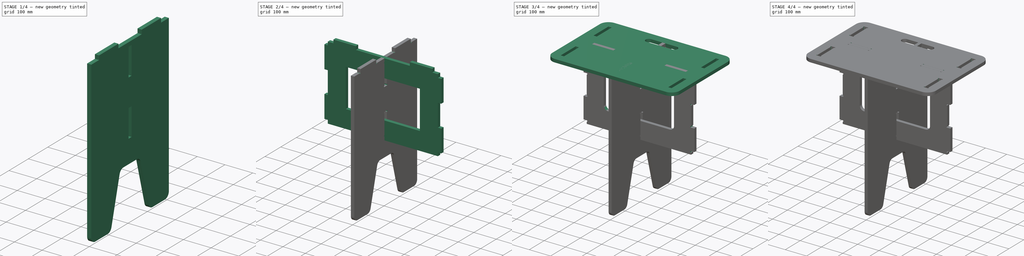
[diagram: build sequence overview — one tinted view per stage of 4, left to right]
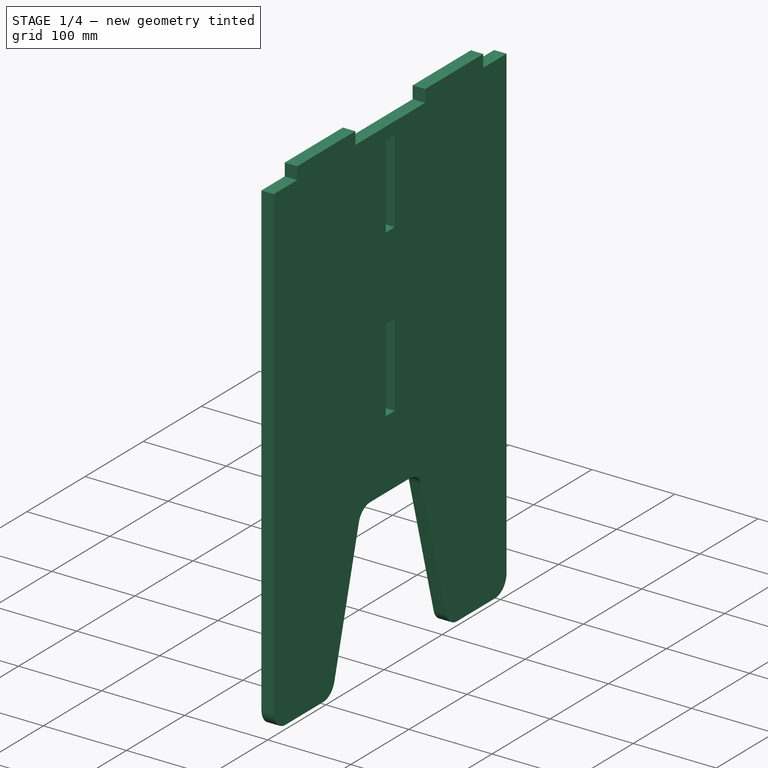
[diagram: stage 1 of 4 — iso view after this stage's code; geometry added in this stage tinted green]
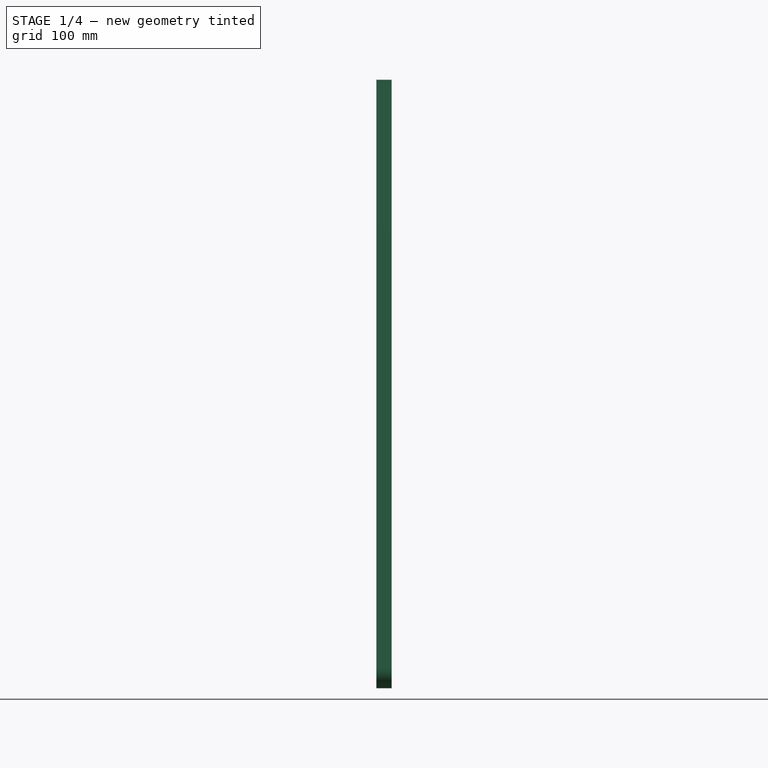
[diagram: stage 1 of 4 — front view after this stage's code; geometry added in this stage tinted green]
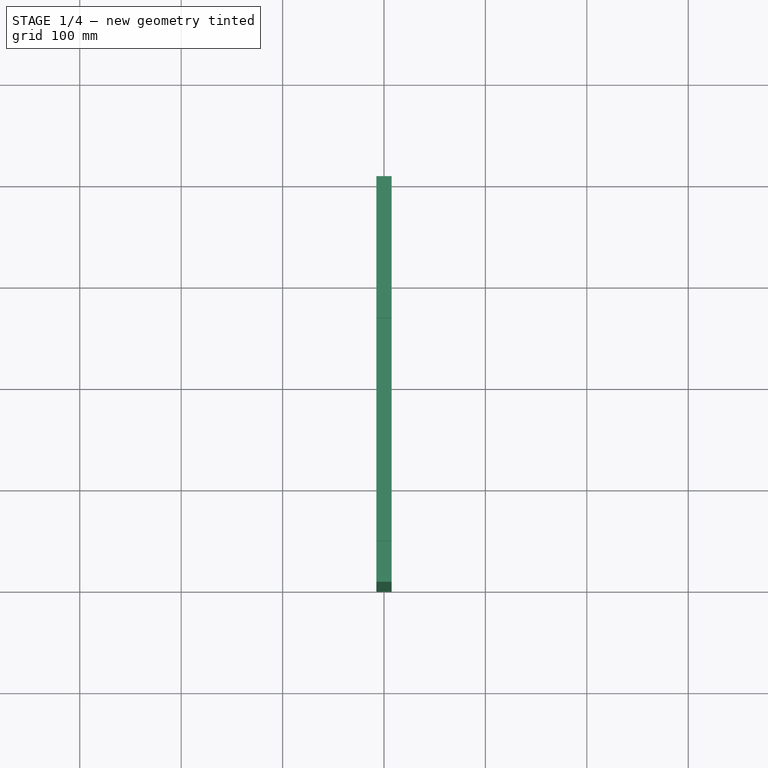
[diagram: stage 1 of 4 — top view after this stage's code; geometry added in this stage tinted green]
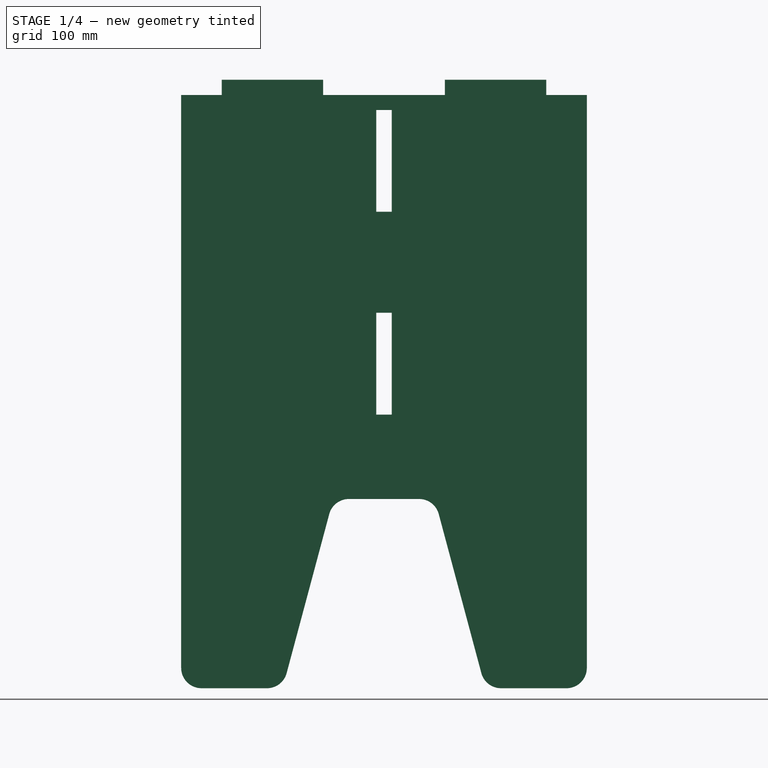
[diagram: stage 1 of 4 — right view after this stage's code; geometry added in this stage tinted green]
FCSTD DOCUMENT  (FreeCAD 0.19R22522 (Git))
Label: a-stool-fab
License: All rights reserved
LicenseURL: http://en.wikipedia.org/wiki/All_rights_reserved
objects: Sketcher::SketchObject×6, PartDesign::Body×4, PartDesign::Pad×3, PartDesign::Pocket×3, TechDraw::DrawViewPart×3, PartDesign::Fillet×2, Spreadsheet::Sheet×1, PartDesign::FeatureBase×1, App::DocumentObjectGroup×1, TechDraw::DrawSVGTemplate×1, TechDraw::DrawPage×1
note: 27 computed .brp shape members not serialized (recipe doc carries the construction recipe); baked Part::Feature solids carry a one-line shape summary decoded from their .brp

FEATURE [Sketcher::SketchObject] Sketch001
  MapMode = 5
  Placement = pos=(0,0,0) rot=(0.57735,0.57735,0.57735;2.0944rad)
  Support = -> [YZ_Plane001]
  expr: Constraints[65] = Spreadsheet.slot_f_length
  expr: Constraints[40] = Spreadsheet.seat_margin
  expr: Constraints[70] = Spreadsheet.slot_length - Spreadsheet.tolerance * 2
  expr: Constraints[14] = Spreadsheet.angle
  expr: Constraints[17] = Spreadsheet.seat_y
  expr: Constraints[38] = Spreadsheet.slot_length
  expr: Constraints[63] = Spreadsheet.slot_f_width
  expr: Constraints[15] = Spreadsheet.angle
  expr: Constraints[67] = Spreadsheet.material_thickness - Spreadsheet.tolerance
  expr: Constraints[34] = Spreadsheet.material_thickness
  expr: Constraints[43] = Spreadsheet.feet_height
  sketch-geometry (25):
    g0: LineSegment StartX=-200 StartY=-600 StartZ=0 EndX=-200 EndY=-15 EndZ=0
    g1: LineSegment StartX=-200 StartY=-15 StartZ=0 EndX=-160 EndY=-15 EndZ=0
    g2: LineSegment StartX=160 StartY=-15 StartZ=0 EndX=200 EndY=-15 EndZ=0
    g3: LineSegment StartX=200 StartY=-15 StartZ=0 EndX=200 EndY=-600 EndZ=0
    g4: LineSegment StartX=200 StartY=-600 StartZ=0 EndX=100 EndY=-600 EndZ=0
    g5: LineSegment StartX=100 StartY=-600 StartZ=0 EndX=50 EndY=-413.397 EndZ=0
    g6: LineSegment StartX=50 StartY=-413.397 StartZ=0 EndX=-50 EndY=-413.397 EndZ=0
    g7: LineSegment StartX=-50 StartY=-413.397 StartZ=0 EndX=-100 EndY=-600 EndZ=0
    g8: LineSegment StartX=-100 StartY=-600 StartZ=0 EndX=-200 EndY=-600 EndZ=0
    g9: LineSegment StartX=-160 StartY=-15 StartZ=0 EndX=-160 EndY=0 EndZ=0
    g10: LineSegment StartX=-160 StartY=0 StartZ=0 EndX=-60 EndY=0 EndZ=0
    g11: LineSegment StartX=-60 StartY=0 StartZ=0 EndX=-60 EndY=-15 EndZ=0
    g12: LineSegment StartX=-60 StartY=-15 StartZ=0 EndX=60 EndY=-15 EndZ=0
    g13: LineSegment StartX=60 StartY=-15 StartZ=0 EndX=60 EndY=0 EndZ=0
    g14: LineSegment StartX=60 StartY=0 StartZ=0 EndX=160 EndY=0 EndZ=0
    g15: LineSegment StartX=160 StartY=0 StartZ=0 EndX=160 EndY=-15 EndZ=0
    g16: LineSegment [constr] StartX=-100 StartY=-600 StartZ=0 EndX=100 EndY=-600 EndZ=0
    g17: LineSegment StartX=-7.7 StartY=-29.8 StartZ=0 EndX=7.7 EndY=-29.8 EndZ=0
    g18: LineSegment StartX=7.7 StartY=-29.8 StartZ=0 EndX=7.7 EndY=-130.2 EndZ=0
    g19: LineSegment StartX=7.7 StartY=-130.2 StartZ=0 EndX=-7.7 EndY=-130.2 EndZ=0
    g20: LineSegment StartX=-7.7 StartY=-130.2 StartZ=0 EndX=-7.7 EndY=-29.8 EndZ=0
    g21: LineSegment StartX=-7.7 StartY=-229.8 StartZ=0 EndX=7.7 EndY=-229.8 EndZ=0
    g22: LineSegment StartX=7.7 StartY=-229.8 StartZ=0 EndX=7.7 EndY=-330.2 EndZ=0
    g23: LineSegment StartX=7.7 StartY=-330.2 StartZ=0 EndX=-7.7 EndY=-330.2 EndZ=0
    g24: LineSegment StartX=-7.7 StartY=-330.2 StartZ=0 EndX=-7.7 EndY=-229.8 EndZ=0
  constraints (71):
    c: Coincident(g0,g1)
    c: Horizontal(g1)
    c: Coincident(g2,g3)
    c: Coincident(g3,g4)
    c: Horizontal(g4)
    c: Coincident(g4,g5)
    c: Coincident(g5,g6)
    c: Coincident(g6,g7)
    c: Coincident(g7,g8)
    c: Coincident(g0,g8)
    c: Horizontal(g8)
    c: Horizontal(g2)
    c: Vertical(g0)
    c: Vertical(g3)
    c: Angle(g7,g6) = 1.8326
    c: Angle(g6,g5) = 1.8326
    c: Symmetric(g6,g5,g-2)
    c: DistanceX(g0,g3) = 400
    c: Equal(g3,g0)
    c: Coincident(g9,g1)
    c: Vertical(g9)
    c: Coincident(g9,g10)
    c: Horizontal(g10)
    c: Coincident(g10,g11)
    c: Vertical(g11)
    c: Coincident(g11,g12)
    c: Horizontal(g12)
    c: Coincident(g12,g13)
    c: Vertical(g13)
    c: Coincident(g13,g14)
    c: Horizontal(g14)
    c: Coincident(g14,g15)
    c: Coincident(g15,g2)
    c: Vertical(g15)
    c: DistanceY(g9,g9) = 15
    c: PointOnObject(g9,g-1)
    c: Equal(g13,g9)
    c: PointOnObject(g13,g-1)
    c: DistanceX(g10,g10) = 100
    c: Equal(g14,g10)
    c: DistanceX(g1,g1) = 40
    c: Equal(g2,g1)
    c: Equal(g9,g15)
    c: DistanceY(g3,g14) = 600
    c: Equal(g10,g8)
    c: Equal(g8,g4)
    c: Equal(g8,g6)
    c: Coincident(g16,g7)
    c: Coincident(g16,g4)
    c: Coincident(g17,g18)
    c: Coincident(g18,g19)
    c: Coincident(g19,g20)
    c: Coincident(g20,g17)
    c: Horizontal(g19)
    c: Vertical(g18)
    c: Vertical(g20)
    c: Coincident(g21,g22)
    c: Coincident(g22,g23)
    c: Coincident(g23,g24)
    c: Coincident(g24,g21)
    c: Horizontal(g23)
    c: Vertical(g22)
    c: Vertical(g24)
    c: DistanceX(g17,g17) = 15.4
    c: Equal(g17,g21)
    c: DistanceY(g18,g18) = 100.4
    c: Equal(g20,g24)
    c: DistanceY(g17,g11) = 14.8
    c: Symmetric(g17,g17,g-2)
    c: Symmetric(g21,g21,g-2)
    c: DistanceY(g21,g19) = 99.6
FEATURE [PartDesign::Pad] Pad001
  Direction = (1,1,1)
  Length = 15
  Length2 = 100
  Midplane = true
  Placement = pos=(0,0,0) rot=(0.57735,0.57735,0.57735;2.0944rad)
  Profile = -> Sketch001
  Type = 0
  expr: Length = Spreadsheet.material_thickness
FEATURE [PartDesign::Fillet] Fillet
  Base = -> Pad001 [Edge35,Edge32,Edge38,Edge41,Edge44,Edge1]
  BaseFeature = -> Pad001
  Placement = pos=(0,0,0) rot=(0.57735,0.57735,0.57735;2.0944rad)
  Radius = 20
  SupportTransform = false
  expr: Radius = Spreadsheet.filet
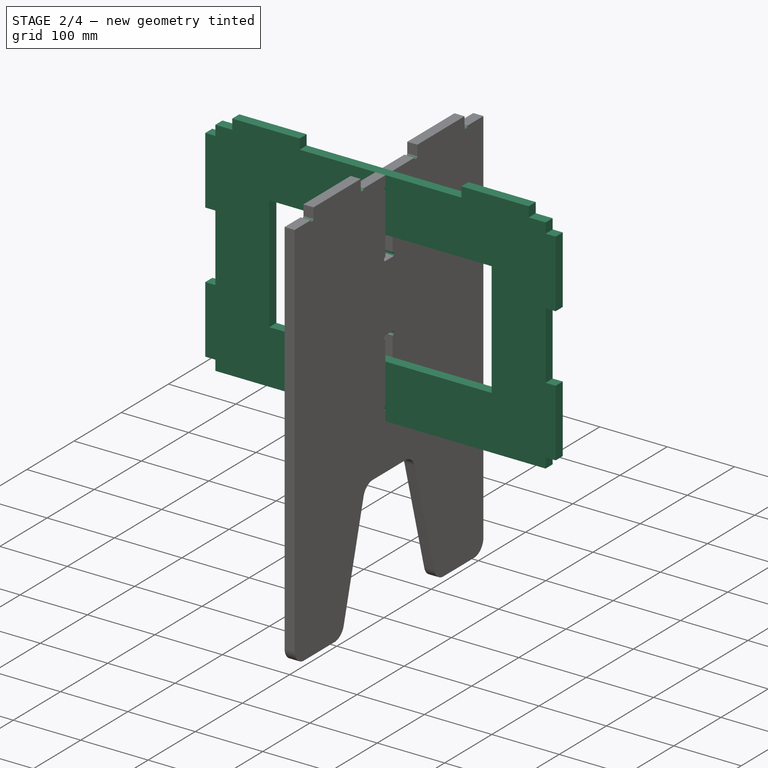
[diagram: stage 2 of 4 — iso view after this stage's code; geometry added in this stage tinted green]
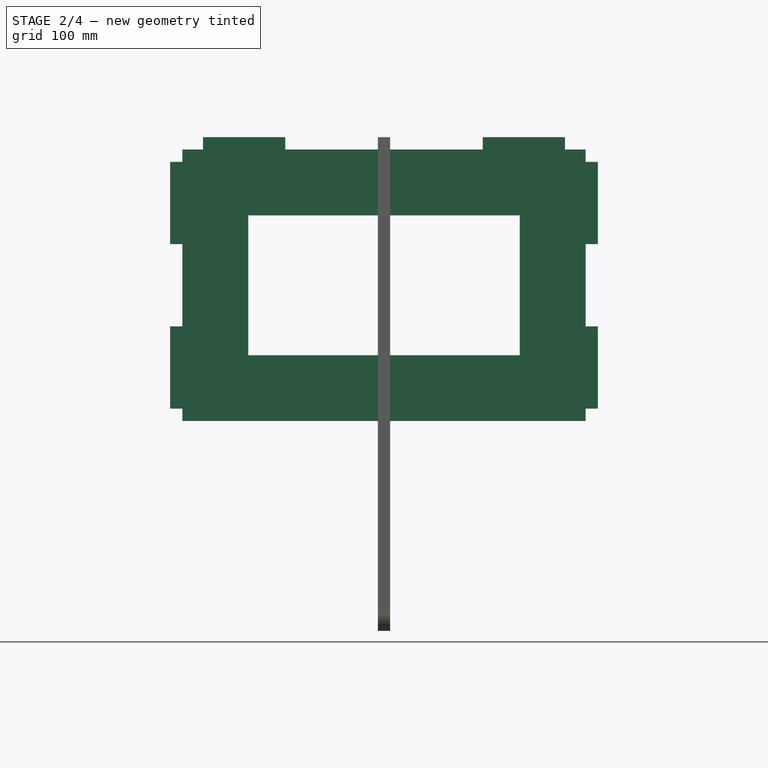
[diagram: stage 2 of 4 — front view after this stage's code; geometry added in this stage tinted green]
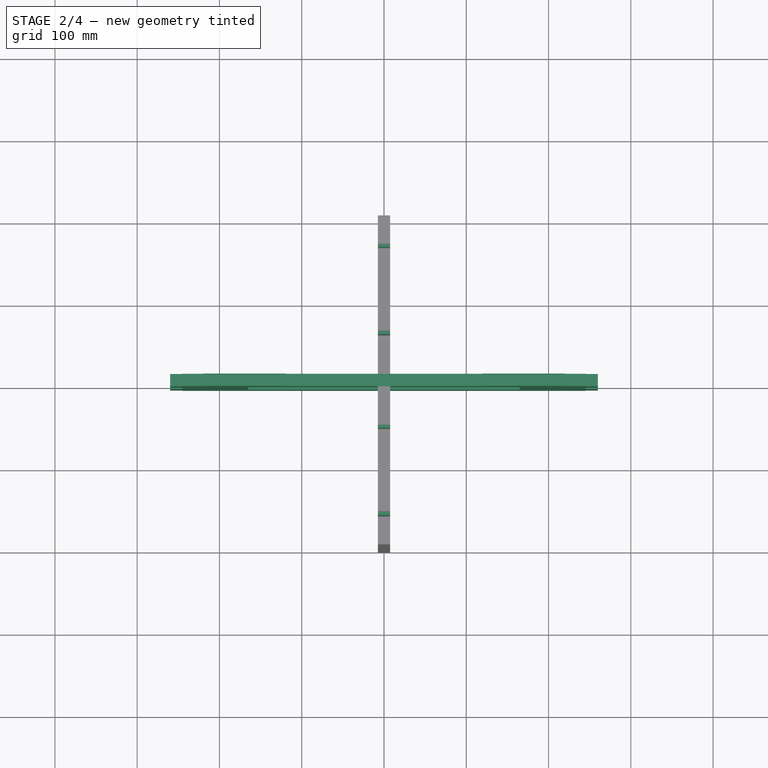
[diagram: stage 2 of 4 — top view after this stage's code; geometry added in this stage tinted green]
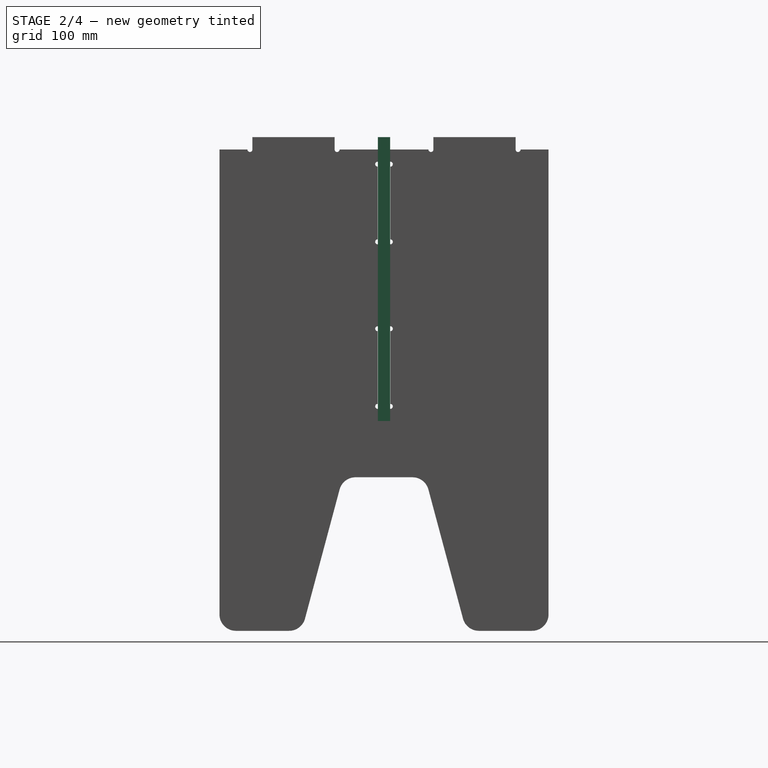
[diagram: stage 2 of 4 — right view after this stage's code; geometry added in this stage tinted green]
FEATURE [Sketcher::SketchObject] Sketch002
  MapMode = 5
  Placement = pos=(0,0,0) rot=(1,0,0;1.5708rad)
  Support = -> [XZ_Plane003]
  expr: Constraints[135] = Spreadsheet.seat_margin
  expr: Constraints[11] = Spreadsheet.material_thickness
  expr: Constraints[25] = Spreadsheet.slot_length
  expr: Constraints[123] = Spreadsheet.seat_margin * 2
  expr: Constraints[131] = Spreadsheet.seat_margin
  expr: Constraints[91] = Spreadsheet.seat_x - Spreadsheet.seat_margin * 2
  sketch-geometry (55):
    g0: LineSegment StartX=-220 StartY=-15 StartZ=0 EndX=-220 EndY=0 EndZ=0
    g1: LineSegment StartX=-220 StartY=0 StartZ=0 EndX=-120 EndY=0 EndZ=0
    g2: LineSegment StartX=-120 StartY=0 StartZ=0 EndX=-120 EndY=-15 EndZ=0
    g3: LineSegment StartX=-120 StartY=-15 StartZ=0 EndX=120 EndY=-15 EndZ=0
    g4: LineSegment StartX=120 StartY=-15 StartZ=0 EndX=120 EndY=0 EndZ=0
    g5: LineSegment StartX=120 StartY=-4e-16 StartZ=0 EndX=220 EndY=-4e-16 EndZ=0
    g6: LineSegment StartX=-245 StartY=-130 StartZ=0 EndX=-260 EndY=-130 EndZ=0
    g7: LineSegment StartX=-260 StartY=-130 StartZ=0 EndX=-260 EndY=-30 EndZ=0
    g8: LineSegment StartX=-260 StartY=-30 StartZ=0 EndX=-245 EndY=-30 EndZ=0
    g9: LineSegment StartX=-245 StartY=-30 StartZ=0 EndX=-245 EndY=-15 EndZ=0
    g10: LineSegment StartX=-245 StartY=-130 StartZ=0 EndX=-245 EndY=-230 EndZ=0
    g11: LineSegment StartX=-245 StartY=-230 StartZ=0 EndX=-260 EndY=-230 EndZ=0
    g12: LineSegment StartX=-260 StartY=-230 StartZ=0 EndX=-260 EndY=-330 EndZ=0
    g13: LineSegment StartX=-260 StartY=-330 StartZ=0 EndX=-245 EndY=-330 EndZ=0
    g14: LineSegment StartX=-245 StartY=-330 StartZ=0 EndX=-245 EndY=-345 EndZ=0
    g15: LineSegment StartX=-245 StartY=-345 StartZ=0 EndX=245 EndY=-345 EndZ=0
    g16: LineSegment StartX=245 StartY=-345 StartZ=0 EndX=245 EndY=-330 EndZ=0
    g17: LineSegment StartX=245 StartY=-330 StartZ=0 EndX=260 EndY=-330 EndZ=0
    g18: LineSegment StartX=260 StartY=-330 StartZ=0 EndX=260 EndY=-230 EndZ=0
    g19: LineSegment StartX=260 StartY=-230 StartZ=0 EndX=245 EndY=-230 EndZ=0
    g20: LineSegment StartX=245 StartY=-230 StartZ=0 EndX=245 EndY=-130 EndZ=0
    g21: LineSegment StartX=245 StartY=-130 StartZ=0 EndX=260 EndY=-130 EndZ=0
    g22: LineSegment StartX=260 StartY=-130 StartZ=0 EndX=260 EndY=-30 EndZ=0
    g23: LineSegment StartX=260 StartY=-30 StartZ=0 EndX=245 EndY=-30 EndZ=0
    g24: LineSegment StartX=245 StartY=-30 StartZ=0 EndX=245 EndY=-15 EndZ=0
    g25: LineSegment StartX=220 StartY=-15 StartZ=0 EndX=220 EndY=0 EndZ=0
    g26: LineSegment [constr] StartX=-245 StartY=-230 StartZ=0 EndX=-245 EndY=-330 EndZ=0
    g27: LineSegment [constr] StartX=-245 StartY=-130 StartZ=0 EndX=-245 EndY=-30 EndZ=0
    g28: LineSegment [constr] StartX=-220 StartY=-15 StartZ=0 EndX=-120 EndY=-15 EndZ=0
    g29: LineSegment [constr] StartX=245 StartY=-30 StartZ=0 EndX=245 EndY=-130 EndZ=0
    g30: LineSegment [constr] StartX=245 StartY=-230 StartZ=0 EndX=245 EndY=-330 EndZ=0
    g31: LineSegment [constr] StartX=-260 StartY=-130 StartZ=0 EndX=-260 EndY=-230 EndZ=0
    g32: LineSegment [constr] StartX=260 StartY=-130 StartZ=0 EndX=260 EndY=-230 EndZ=0
    g33: LineSegment [constr] StartX=260 StartY=-180 StartZ=0 EndX=-260 EndY=-180 EndZ=0
    g34: LineSegment [constr] StartX=-120 StartY=0 StartZ=0 EndX=120 EndY=-4e-16 EndZ=0
    g35: LineSegment [constr] StartX=-165 StartY=-95 StartZ=0 EndX=165 EndY=-95 EndZ=0
    g36: LineSegment [constr] StartX=165 StartY=-95 StartZ=0 EndX=165 EndY=-265 EndZ=0
    g37: LineSegment [constr] StartX=165 StartY=-265 StartZ=0 EndX=-165 EndY=-265 EndZ=0
    g38: LineSegment [constr] StartX=-165 StartY=-265 StartZ=0 EndX=-165 EndY=-95 EndZ=0
    g39: LineSegment [constr] StartX=-165 StartY=-95 StartZ=0 EndX=-245 EndY=-95 EndZ=0
    g40: LineSegment [constr] StartX=-165 StartY=-95 StartZ=0 EndX=-165 EndY=-15 EndZ=0
    g41: LineSegment [constr] StartX=-165 StartY=-265 StartZ=0 EndX=-165 EndY=-345 EndZ=0
    g42: LineSegment [constr] StartX=-165 StartY=-265 StartZ=0 EndX=-245 EndY=-265 EndZ=0
    g43: LineSegment [constr] StartX=165 StartY=-265 StartZ=0 EndX=165 EndY=-345 EndZ=0
    g44: LineSegment [constr] StartX=165 StartY=-265 StartZ=0 EndX=245 EndY=-265 EndZ=0
    g45: LineSegment [constr] StartX=165 StartY=-95 StartZ=0 EndX=165 EndY=-15 EndZ=0
    g46: LineSegment [constr] StartX=165 StartY=-95 StartZ=0 EndX=245 EndY=-95 EndZ=0
    g47: LineSegment StartX=-245 StartY=-15 StartZ=0 EndX=-220 EndY=-15 EndZ=0
    g48: LineSegment StartX=245 StartY=-15 StartZ=0 EndX=220 EndY=-15 EndZ=0
    g49: LineSegment [constr] StartX=120 StartY=-15 StartZ=0 EndX=165 EndY=-15 EndZ=0
    g50: LineSegment [constr] StartX=165 StartY=-15 StartZ=0 EndX=220 EndY=-15 EndZ=0
    g51: LineSegment StartX=-165 StartY=-95 StartZ=0 EndX=165 EndY=-95 EndZ=0
    g52: LineSegment StartX=165 StartY=-95 StartZ=0 EndX=165 EndY=-265 EndZ=0
    g53: LineSegment StartX=165 StartY=-265 StartZ=0 EndX=-165 EndY=-265 EndZ=0
    g54: LineSegment StartX=-165 StartY=-265 StartZ=0 EndX=-165 EndY=-95 EndZ=0
  constraints (154):
    c: Vertical(g0)
    c: Coincident(g0,g1)
    c: Horizontal(g1)
    c: Coincident(g1,g2)
    c: Vertical(g2)
    c: Coincident(g2,g3)
    c: Horizontal(g3)
    c: Coincident(g3,g4)
    c: Coincident(g4,g5)
    c: Horizontal(g5)
    c: Vertical(g4)
    c: DistanceY(g0,g0) = 15
    c: Equal(g0,g2)
    c: Equal(g2,g4)
    c: PointOnObject(g0,g-1)
    c: Coincident(g6,g7)
    c: Coincident(g7,g8)
    c: Coincident(g8,g9)
    c: Vertical(g9)
    c: Horizontal(g6)
    c: Equal(g8,g9)
    c: Horizontal(g8)
    c: Vertical(g7)
    c: Equal(g9,g8)
    c: Equal(g8,g6)
    c: DistanceY(g7,g7) = 100
    c: Equal(g1,g5)
    c: Equal(g5,g7)
    c: Coincident(g6,g10)
    c: Coincident(g10,g11)
    c: Horizontal(g11)
    c: Coincident(g11,g12)
    c: Vertical(g12)
    c: Coincident(g12,g13)
    c: Horizontal(g13)
    c: Coincident(g13,g14)
    c: Vertical(g14)
    c: Coincident(g14,g15)
    c: Horizontal(g15)
    c: Coincident(g15,g16)
    c: Vertical(g16)
    c: Coincident(g16,g17)
    c: Horizontal(g17)
    c: Coincident(g17,g18)
    c: Coincident(g18,g19)
    c: Coincident(g19,g20)
    c: Vertical(g20)
    c: Coincident(g20,g21)
    c: Horizontal(g21)
    c: Coincident(g21,g22)
    c: Vertical(g22)
    c: Coincident(g22,g23)
    c: Coincident(g23,g24)
    c: Coincident(g25,g5)
    c: Equal(g7,g10)
    c: Equal(g10,g12)
    c: Equal(g12,g22)
    c: Equal(g22,g20)
    c: Equal(g20,g18)
    c: Equal(g8,g6)
    c: Equal(g6,g11)
    c: Equal(g11,g13)
    c: Equal(g13,g14)
    c: Horizontal(g23)
    c: Horizontal(g19)
    c: Vertical(g25)
    c: Equal(g8,g25)
    c: Equal(g24,g23)
    c: Vertical(g24)
    c: Equal(g23,g21)
    c: Equal(g21,g19)
    c: Equal(g19,g17)
    c: Equal(g17,g16)
    c: Coincident(g26,g10)
    c: Coincident(g26,g13)
    c: Coincident(g27,g6)
    c: Coincident(g27,g8)
    c: Coincident(g28,g0)
    c: Coincident(g28,g2)
    c: Coincident(g29,g23)
    c: Coincident(g29,g20)
    c: Coincident(g30,g19)
    c: Coincident(g30,g16)
    c: Vertical(g30)
    c: Coincident(g31,g6)
    c: Coincident(g31,g11)
    c: Coincident(g32,g21)
    c: Coincident(g32,g18)
    c: PointOnObject(g33,g32)
    c: PointOnObject(g33,g31)
    c: Symmetric(g6,g10,g33)
    c: DistanceX(g33,g33) = 520
    c: Coincident(g34,g1)
    c: Coincident(g34,g4)
    c: Symmetric(g33,g33,g-2)
    c: Coincident(g35,g36)
    c: Coincident(g36,g37)
    c: Coincident(g37,g38)
    c: Coincident(g38,g35)
    c: Horizontal(g35)
    c: Horizontal(g37)
    c: Vertical(g36)
    c: Vertical(g38)
    c: Coincident(g39,g35)
    c: PointOnObject(g39,g27)
    c: Horizontal(g39)
    c: Coincident(g40,g35)
    c: PointOnObject(g40,g28)
    c: Vertical(g40)
    c: Coincident(g41,g37)
    c: PointOnObject(g41,g15)
    c: Vertical(g41)
    c: Coincident(g42,g37)
    c: Horizontal(g42)
    c: Coincident(g43,g36)
    c: Vertical(g43)
    c: Coincident(g44,g36)
    c: PointOnObject(g44,g30)
    c: Horizontal(g44)
    c: Coincident(g45,g35)
    c: Vertical(g45)
    c: Coincident(g46,g35)
    c: Horizontal(g46)
    c: DistanceX(g39,g39) = 80
    c: Equal(g39,g40)
    c: Equal(g40,g45)
    c: Equal(g45,g46)
    c: Equal(g46,g44)
    c: Equal(g44,g43)
    c: Equal(g43,g41)
    c: Equal(g41,g42)
    c: DistanceX(g7,g0) = 40
    c: Coincident(g47,g9)
    c: Coincident(g47,g0)
    c: Horizontal(g47)
    c: DistanceX(g25,g22) = 40
    c: Coincident(g48,g24)
    c: Coincident(g48,g25)
    c: Horizontal(g48)
    c: Coincident(g49,g3)
    c: Coincident(g49,g45)
    c: Coincident(g50,g45)
    c: Coincident(g50,g25)
    c: Horizontal(g50)
    c: Coincident(g51,g52)
    c: Coincident(g52,g53)
    c: Coincident(g53,g54)
    c: Coincident(g54,g51)
    c: Horizontal(g51)
    c: Horizontal(g53)
    c: Vertical(g52)
    c: Vertical(g54)
    c: Coincident(g51,g35)
    c: Coincident(g52,g36)
FEATURE [PartDesign::Pad] Pad002
  Direction = (1,1,1)
  Length = 15
  Length2 = 100
  Midplane = true
  Placement = pos=(0,0,0) rot=(1,0,0;1.5708rad)
  Profile = -> Sketch002
  Type = 0
  expr: Length = Spreadsheet.material_thickness
FEATURE [PartDesign::Body] Body  label="seat"
  Group = -> [Sketch,Pad,Sketch003,Pocket]
  Origin = -> Origin
  Tip = -> Pocket
FEATURE [Sketcher::SketchObject] Sketch004
  ExternalGeometry = -> [Fillet]
  MapMode = 5
  Placement = pos=(0,0,0) rot=(0.57735,0.57735,0.57735;2.0944rad)
  Support = -> [YZ_Plane001]
  expr: Constraints[1] = Spreadsheet.endmill_dia
  sketch-geometry (12):
    g0: Circle CenterX=-7.7 CenterY=-232.8 CenterZ=0 NormalX=0 NormalY=0 NormalZ=1 AngleXU=0 Radius=3
    g1: Circle CenterX=-7.7 CenterY=-327.2 CenterZ=0 NormalX=0 NormalY=0 NormalZ=1 AngleXU=0 Radius=3
    g2: Circle CenterX=-7.7 CenterY=-32.8 CenterZ=0 NormalX=0 NormalY=0 NormalZ=1 AngleXU=0 Radius=3
    g3: Circle CenterX=-7.7 CenterY=-127.2 CenterZ=0 NormalX=0 NormalY=0 NormalZ=1 AngleXU=0 Radius=3
    g4: Circle CenterX=-163 CenterY=-15 CenterZ=0 NormalX=0 NormalY=0 NormalZ=1 AngleXU=0 Radius=3
    g5: Circle CenterX=-57 CenterY=-15 CenterZ=0 NormalX=0 NormalY=0 NormalZ=1 AngleXU=0 Radius=3
    g6: Circle CenterX=163 CenterY=-15 CenterZ=0 NormalX=0 NormalY=0 NormalZ=1 AngleXU=0 Radius=3
    g7: Circle CenterX=57 CenterY=-15 CenterZ=0 NormalX=0 NormalY=0 NormalZ=1 AngleXU=0 Radius=3
    g8: Circle CenterX=7.7 CenterY=-32.8 CenterZ=0 NormalX=0 NormalY=0 NormalZ=1 AngleXU=0 Radius=3
    g9: Circle CenterX=7.7 CenterY=-127.2 CenterZ=0 NormalX=0 NormalY=0 NormalZ=1 AngleXU=0 Radius=3
    g10: Circle CenterX=7.7 CenterY=-232.8 CenterZ=0 NormalX=0 NormalY=0 NormalZ=1 AngleXU=0 Radius=3
    g11: Circle CenterX=7.7 CenterY=-327.2 CenterZ=0 NormalX=0 NormalY=0 NormalZ=1 AngleXU=0 Radius=3
  constraints (24):
    c: PointOnObject(g3,g-6)
    c: Diameter(g4) = 6
    c: Equal(g4,g5)
    c: Equal(g5,g2)
    c: Equal(g2,g3)
    c: Equal(g0,g1)
    c: Equal(g1,g4)
    c: PointOnObject(g-7,g3)
    c: PointOnObject(g0,g-3)
    c: PointOnObject(g-3,g0)
    c: PointOnObject(g1,g-3)
    c: PointOnObject(g-4,g1)
    c: PointOnObject(g5,g-11)
    c: PointOnObject(g-11,g5)
    c: PointOnObject(g2,g-6)
    c: PointOnObject(g-6,g2)
    c: PointOnObject(g4,g-9)
    c: PointOnObject(g-9,g4)
    c: Diameter(g6) = 6
    c: Equal(g6,g7)
    c: Equal(g7,g8)
    c: Equal(g8,g9)
    c: Equal(g10,g11)
    c: Equal(g11,g6)
FEATURE [PartDesign::Pocket] Pocket001
  BaseFeature = -> Fillet
  Length = 50
  Length2 = 100
  Midplane = true
  Placement = pos=(0,0,0) rot=(0.57735,0.57735,0.57735;2.0944rad)
  Profile = -> Sketch004
  Type = 1
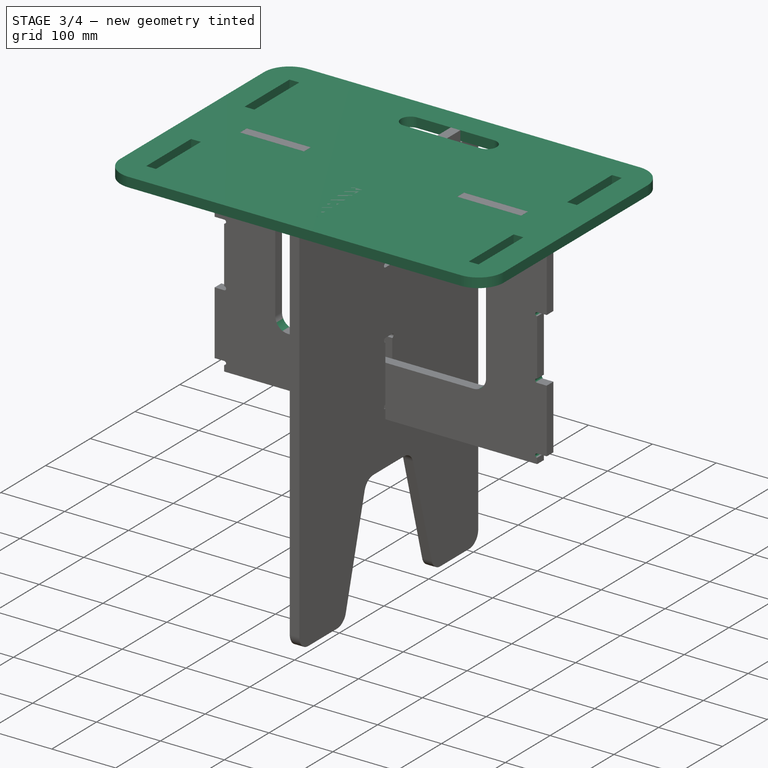
[diagram: stage 3 of 4 — iso view after this stage's code; geometry added in this stage tinted green]
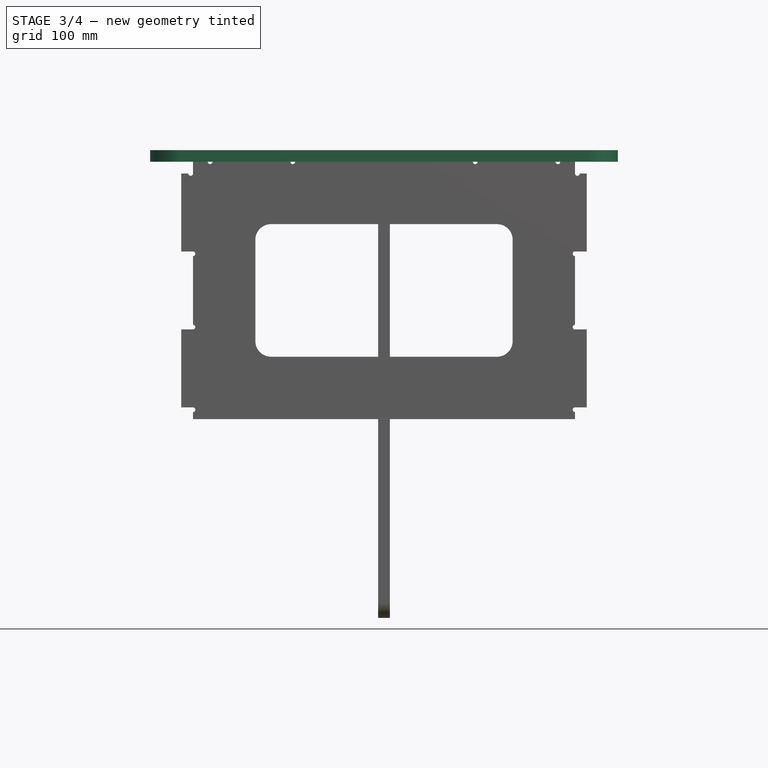
[diagram: stage 3 of 4 — front view after this stage's code; geometry added in this stage tinted green]
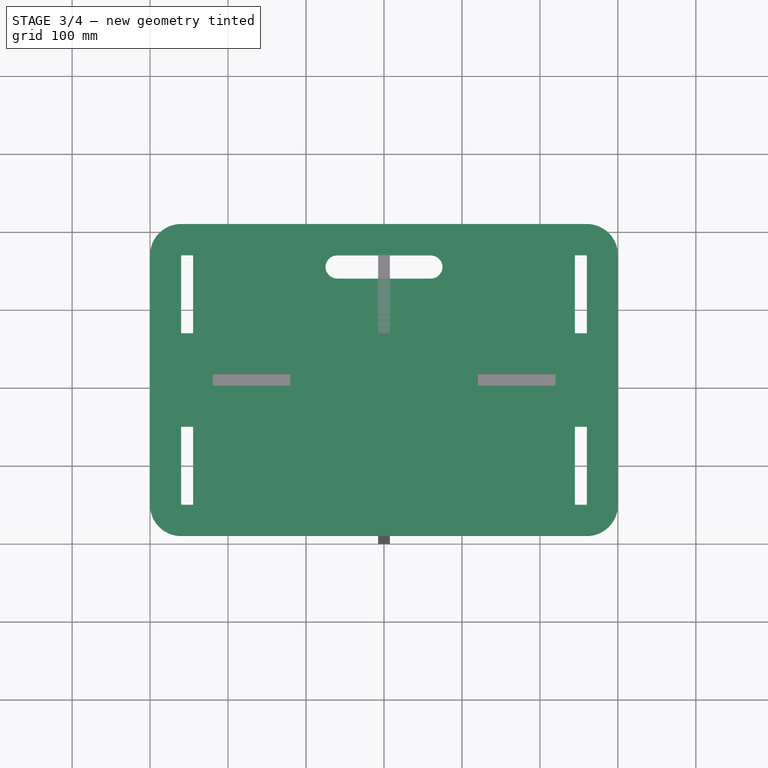
[diagram: stage 3 of 4 — top view after this stage's code; geometry added in this stage tinted green]
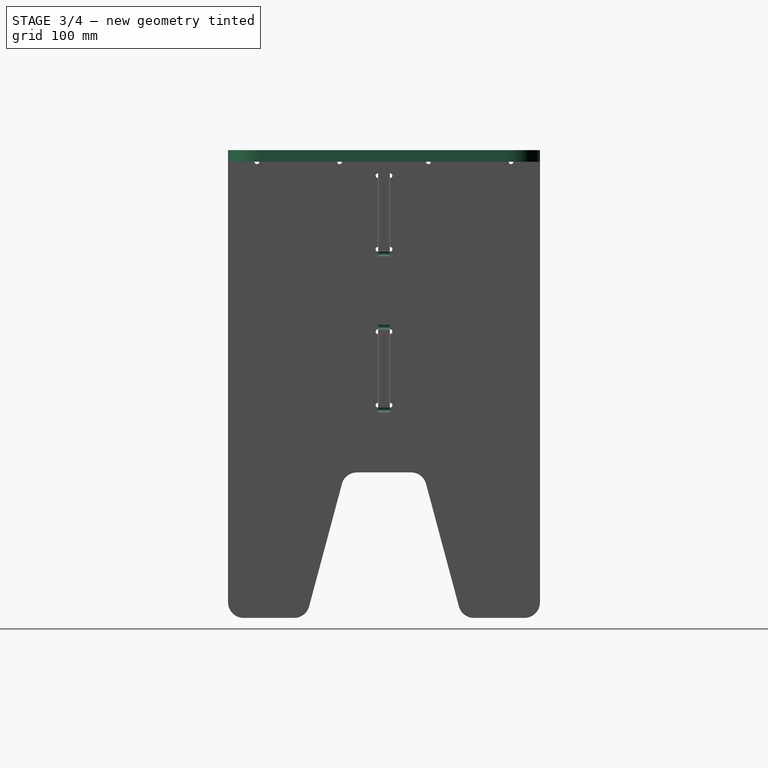
[diagram: stage 3 of 4 — right view after this stage's code; geometry added in this stage tinted green]
FEATURE [Spreadsheet::Sheet] Spreadsheet
  cells = A1=tolerance; B1(tolerance)==0.2mm; A2=seat_x; B2(seat_x)==600mm; A3=seat_y; B3(seat_y)==400mm; A4=seat_margin; B4(seat_margin)==40mm; A5=material_thickness; B5(material_thickness)==15mm; A6=feet_height; B6(feet_height)==600mm; A7=angle; B7(angle)==105deg; A8=filet; B8(filet)==20mm; A9=handle_x; B9(handle_x)==120mm; A10=handle_y; B10(handle_y)==30mm; A11=slot_length; B11(slot_length)==seat_y / 4; A12=slot_width; B12(slot_width)==material_thickness; A13=endmill_dia; B13(endmill_dia)==6mm; A14=slot_f_length; B14(slot_f_length)==slot_length + tolerance * 2; A15=slot_f_width; B15(slot_f_width)==slot_width + tolerance * 2
FEATURE [Sketcher::SketchObject] Sketch
  MapMode = 5
  Support = -> [XY_Plane]
  expr: Constraints[14] = Spreadsheet.seat_margin - Spreadsheet.tolerance
  expr: Constraints[39] = Spreadsheet.handle_x
  expr: Constraints[79] = Spreadsheet.slot_f_width
  expr: Constraints[98] = Spreadsheet.seat_margin * 2 - Spreadsheet.tolerance
  expr: Constraints[99] = Spreadsheet.seat_margin * 2 - Spreadsheet.tolerance
  expr: Constraints[19] = Spreadsheet.seat_x
  expr: Constraints[23] = Spreadsheet.seat_y
  expr: Constraints[80] = Spreadsheet.slot_f_length
  expr: Constraints[40] = Spreadsheet.handle_y
  expr: Constraints[42] = Spreadsheet.seat_margin
  sketch-geometry (42):
    g0: LineSegment StartX=-260.2 StartY=200 StartZ=0 EndX=260.2 EndY=200 EndZ=0
    g1: LineSegment StartX=300 StartY=160.2 StartZ=0 EndX=300 EndY=-160.2 EndZ=0
    g2: LineSegment StartX=260.2 StartY=-200 StartZ=0 EndX=-260.2 EndY=-200 EndZ=0
    g3: LineSegment StartX=-300 StartY=-160.2 StartZ=0 EndX=-300 EndY=160.2 EndZ=0
    g4: ArcOfCircle CenterX=-260.2 CenterY=160.2 CenterZ=0 NormalX=0 NormalY=0 NormalZ=1 AngleXU=0 Radius=39.8 StartAngle=1.5708 EndAngle=3.14159
    g5: ArcOfCircle CenterX=260.2 CenterY=160.2 CenterZ=0 NormalX=0 NormalY=0 NormalZ=1 AngleXU=0 Radius=39.8 StartAngle=0 EndAngle=1.5708
    g6: ArcOfCircle CenterX=260.2 CenterY=-160.2 CenterZ=0 NormalX=0 NormalY=0 NormalZ=1 AngleXU=0 Radius=39.8 StartAngle=4.71239 EndAngle=6.28319
    g7: ArcOfCircle CenterX=-260.2 CenterY=-160.2 CenterZ=0 NormalX=0 NormalY=0 NormalZ=1 AngleXU=0 Radius=39.8 StartAngle=3.14159 EndAngle=4.71239
    g8: LineSegment [constr] StartX=-260.2 StartY=160.2 StartZ=0 EndX=-300 EndY=160.2 EndZ=0
    g9: LineSegment [constr] StartX=-300 StartY=0 StartZ=0 EndX=300 EndY=0 EndZ=0
    g10: LineSegment [constr] StartX=0 StartY=200 StartZ=0 EndX=0 EndY=-200 EndZ=0
    g11: LineSegment [constr] StartX=300 StartY=160.2 StartZ=0 EndX=260.2 EndY=160.2 EndZ=0
    g12: LineSegment [constr] StartX=300 StartY=-160.2 StartZ=0 EndX=260.2 EndY=-160.2 EndZ=0
    g13: LineSegment [constr] StartX=-260.2 StartY=-160.2 StartZ=0 EndX=-300 EndY=-160.2 EndZ=0
    g14: ArcOfCircle CenterX=-60 CenterY=145 CenterZ=0 NormalX=0 NormalY=0 NormalZ=1 AngleXU=0 Radius=15 StartAngle=1.5708 EndAngle=4.71239
    g15: ArcOfCircle CenterX=60 CenterY=145 CenterZ=0 NormalX=0 NormalY=0 NormalZ=1 AngleXU=0 Radius=15 StartAngle=4.71239 EndAngle=7.85398
    g16: LineSegment StartX=-60 StartY=130 StartZ=0 EndX=60 EndY=130 EndZ=0
    g17: LineSegment StartX=-60 StartY=160 StartZ=0 EndX=60 EndY=160 EndZ=0
    g18: LineSegment StartX=-260.2 StartY=160.2 StartZ=0 EndX=-244.8 EndY=160.2 EndZ=0
    g19: LineSegment StartX=-244.8 StartY=160.2 StartZ=0 EndX=-244.8 EndY=59.8 EndZ=0
    g20: LineSegment StartX=-244.8 StartY=59.8 StartZ=0 EndX=-260.2 EndY=59.8 EndZ=0
    g21: LineSegment StartX=-260.2 StartY=59.8 StartZ=0 EndX=-260.2 EndY=160.2 EndZ=0
    g22: LineSegment StartX=-260.2 StartY=-160.2 StartZ=0 EndX=-244.8 EndY=-160.2 EndZ=0
    g23: LineSegment StartX=-244.8 StartY=-160.2 StartZ=0 EndX=-244.8 EndY=-59.8 EndZ=0
    g24: LineSegment StartX=-244.8 StartY=-59.8 StartZ=0 EndX=-260.2 EndY=-59.8 EndZ=0
    g25: LineSegment StartX=-260.2 StartY=-59.8 StartZ=0 EndX=-260.2 EndY=-160.2 EndZ=0
    g26: LineSegment StartX=260.2 StartY=160.2 StartZ=0 EndX=244.8 EndY=160.2 EndZ=0
    g27: LineSegment StartX=244.8 StartY=160.2 StartZ=0 EndX=244.8 EndY=59.8 EndZ=0
    g28: LineSegment StartX=244.8 StartY=59.8 StartZ=0 EndX=260.2 EndY=59.8 EndZ=0
    g29: LineSegment StartX=260.2 StartY=59.8 StartZ=0 EndX=260.2 EndY=160.2 EndZ=0
    g30: LineSegment StartX=260.2 StartY=-160.2 StartZ=0 EndX=244.8 EndY=-160.2 EndZ=0
    g31: LineSegment StartX=244.8 StartY=-160.2 StartZ=0 EndX=244.8 EndY=-59.8 EndZ=0
    g32: LineSegment StartX=244.8 StartY=-59.8 StartZ=0 EndX=260.2 EndY=-59.8 EndZ=0
    g33: LineSegment StartX=260.2 StartY=-59.8 StartZ=0 EndX=260.2 EndY=-160.2 EndZ=0
    g34: LineSegment StartX=-119.8 StartY=7.7 StartZ=0 EndX=-119.8 EndY=-7.7 EndZ=0
    g35: LineSegment StartX=-119.8 StartY=-7.7 StartZ=0 EndX=-220.2 EndY=-7.7 EndZ=0
    g36: LineSegment StartX=-220.2 StartY=-7.7 StartZ=0 EndX=-220.2 EndY=7.7 EndZ=0
    g37: LineSegment StartX=119.8 StartY=7.7 StartZ=0 EndX=220.2 EndY=7.7 EndZ=0
    g38: LineSegment StartX=220.2 StartY=7.7 StartZ=0 EndX=220.2 EndY=-7.7 EndZ=0
    g39: LineSegment StartX=220.2 StartY=-7.7 StartZ=0 EndX=119.8 EndY=-7.7 EndZ=0
    g40: LineSegment StartX=119.8 StartY=-7.7 StartZ=0 EndX=119.8 EndY=7.7 EndZ=0
    g41: LineSegment StartX=-220.2 StartY=7.7 StartZ=0 EndX=-119.8 EndY=7.7 EndZ=0
  constraints (110):
    c: Horizontal(g2)
    c: Vertical(g3)
    c: Tangent(g3,g4) = 1.5708
    c: Tangent(g0,g4) = 1.5708
    c: Tangent(g0,g5) = 1.5708
    c: Tangent(g1,g5) = 1.5708
    c: Tangent(g1,g6) = 1.5708
    c: Tangent(g2,g6) = 1.5708
    c: Tangent(g2,g7) = 1.5708
    c: Tangent(g3,g7) = 1.5708
    c: Vertical(g1)
    c: Horizontal(g0)
    c: Coincident(g8,g4)
    c: Coincident(g8,g3)
    c: DistanceX(g8,g8) = 39.8
    c: PointOnObject(g9,g3)
    c: PointOnObject(g9,g1)
    c: PointOnObject(g9,g-1)
    c: Symmetric(g9,g9,g-2)
    c: DistanceX(g9,g9) = 600
    c: PointOnObject(g10,g0)
    c: PointOnObject(g10,g2)
    c: PointOnObject(g10,g-2)
    c: DistanceY(g10,g10) = 400
    c: Symmetric(g10,g10,g-1)
    c: Coincident(g11,g1)
    c: Coincident(g11,g5)
    c: Coincident(g12,g1)
    c: Coincident(g12,g6)
    c: Coincident(g13,g7)
    c: Coincident(g13,g3)
    c: Equal(g8,g13)
    c: Equal(g13,g11)
    c: Equal(g11,g12)
    c: Tangent(g14,g17)
    c: Tangent(g14,g16)
    c: Tangent(g16,g15)
    c: Tangent(g17,g15)
    c: Horizontal(g16)
    c: DistanceX(g14,g15) = 120
    c: DistanceY(g14,g14) = 30
    c: Symmetric(g14,g15,g10)
    c: DistanceY(g14,g10) = 40
    c: Coincident(g18,g19)
    c: Coincident(g19,g20)
    c: Coincident(g20,g21)
    c: Coincident(g21,g18)
    c: Horizontal(g18)
    c: Horizontal(g20)
    c: Vertical(g19)
    c: Vertical(g21)
    c: Coincident(g18,g4)
    c: Coincident(g22,g23)
    c: Coincident(g23,g24)
    c: Coincident(g24,g25)
    c: Coincident(g25,g22)
    c: Horizontal(g22)
    c: Horizontal(g24)
    c: Vertical(g23)
    c: Vertical(g25)
    c: Coincident(g22,g7)
    c: Coincident(g26,g27)
    c: Coincident(g27,g28)
    c: Coincident(g28,g29)
    c: Coincident(g29,g26)
    c: Horizontal(g26)
    c: Horizontal(g28)
    c: Vertical(g27)
    c: Vertical(g29)
    c: Coincident(g26,g5)
    c: Coincident(g30,g31)
    c: Coincident(g31,g32)
    c: Coincident(g32,g33)
    c: Coincident(g33,g30)
    c: Horizontal(g30)
    c: Horizontal(g32)
    c: Vertical(g31)
    c: Vertical(g33)
    c: Coincident(g30,g6)
    c: DistanceX(g18,g18) = 15.4
    c: DistanceY(g19,g19) = 100.4
    c: Equal(g24,g18)
    c: Equal(g18,g26)
    c: Equal(g26,g32)
    c: Equal(g19,g23)
    c: Equal(g23,g33)
    c: Equal(g33,g29)
    c: Coincident(g34,g35)
    c: Coincident(g35,g36)
    c: Horizontal(g35)
    c: Vertical(g34)
    c: Coincident(g37,g38)
    c: Coincident(g38,g39)
    c: Coincident(g39,g40)
    c: Coincident(g40,g37)
    c: Horizontal(g37)
    c: Horizontal(g39)
    c: Vertical(g38)
    c: DistanceX(g37,g9) = 79.8
    c: DistanceX(g9,g36) = 79.8
    c: Equal(g18,g36)
    c: Equal(g36,g40)
    c: Symmetric(g37,g39,g9)
    c: Equal(g18,g36)
    c: Symmetric(g36,g35,g9)
    c: Coincident(g41,g36)
    c: Coincident(g41,g34)
    c: Horizontal(g41)
    c: Equal(g41,g19)
    c: Equal(g37,g19)
FEATURE [PartDesign::Pad] Pad
  Direction = (1,1,1)
  Length = 15
  Length2 = 100
  Profile = -> Sketch
  Reversed = true
  Type = 0
  expr: Length = Spreadsheet.material_thickness
FEATURE [PartDesign::Fillet] Fillet001
  Base = -> Pad002 [Edge86,Edge92,Edge89,Edge85]
  BaseFeature = -> Pad002
  Placement = pos=(0,0,0) rot=(1,0,0;1.5708rad)
  Radius = 20
  SupportTransform = false
  expr: Radius = Spreadsheet.filet
FEATURE [PartDesign::Body] Body002  label="foot_02"
  BaseFeature = -> Body001
  Group = -> [Clone]
  Origin = -> Origin002
  Placement = pos=(252.5,0,0) rot=(0,0,1;0rad)
  Tip = -> Clone
  expr: .Placement.Base.x = Spreadsheet.seat_x / 2 - Spreadsheet.seat_margin - Spreadsheet.material_thickness / 2
FEATURE [App::DocumentObjectGroup] Group  label="feet"
  Group = -> [Body001,Body002]
FEATURE [Sketcher::SketchObject] Sketch005
  ExternalGeometry = -> [Fillet001]
  MapMode = 5
  Placement = pos=(0,0,0) rot=(1,0,0;1.5708rad)
  Support = -> [XZ_Plane003]
  expr: Constraints[2] = Spreadsheet.endmill_dia
  sketch-geometry (14):
    g0: LineSegment [constr] StartX=-404.772 StartY=-180 StartZ=0 EndX=447.974 EndY=-180 EndZ=0
    g1: Circle CenterX=-117 CenterY=-15 CenterZ=0 NormalX=0 NormalY=0 NormalZ=1 AngleXU=0 Radius=3
    g2: Circle CenterX=-223 CenterY=-15 CenterZ=0 NormalX=0 NormalY=0 NormalZ=1 AngleXU=0 Radius=3
    g3: Circle CenterX=-248 CenterY=-30 CenterZ=0 NormalX=0 NormalY=0 NormalZ=1 AngleXU=0 Radius=3
    g4: Circle CenterX=-245 CenterY=-133 CenterZ=0 NormalX=0 NormalY=0 NormalZ=1 AngleXU=0 Radius=3
    g5: Circle CenterX=-245 CenterY=-227 CenterZ=0 NormalX=0 NormalY=0 NormalZ=1 AngleXU=0 Radius=3
    g6: Circle CenterX=-245 CenterY=-333 CenterZ=0 NormalX=0 NormalY=0 NormalZ=1 AngleXU=0 Radius=3
    g7: LineSegment [constr] StartX=404.772 StartY=-180 StartZ=0 EndX=-447.974 EndY=-180 EndZ=0
    g8: Circle CenterX=117 CenterY=-15 CenterZ=0 NormalX=0 NormalY=0 NormalZ=1 AngleXU=0 Radius=3
    g9: Circle CenterX=223 CenterY=-15 CenterZ=0 NormalX=0 NormalY=0 NormalZ=1 AngleXU=0 Radius=3
    g10: Circle CenterX=248 CenterY=-30 CenterZ=0 NormalX=0 NormalY=0 NormalZ=1 AngleXU=0 Radius=3
    g11: Circle CenterX=245 CenterY=-133 CenterZ=0 NormalX=0 NormalY=0 NormalZ=1 AngleXU=0 Radius=3
    g12: Circle CenterX=245 CenterY=-227 CenterZ=0 NormalX=0 NormalY=0 NormalZ=1 AngleXU=0 Radius=3
    g13: Circle CenterX=245 CenterY=-333 CenterZ=0 NormalX=0 NormalY=0 NormalZ=1 AngleXU=0 Radius=3
  constraints (25):
    c: Symmetric(g-3,g-3,g0)
    c: PointOnObject(g4,g-3)
    c: Diameter(g2) = 6
    c: Equal(g2,g1)
    c: Equal(g1,g3)
    c: Equal(g3,g4)
    c: PointOnObject(g6,g-5)
    c: PointOnObject(g-5,g6)
    c: Equal(g6,g2)
    c: PointOnObject(g1,g-7)
    c: PointOnObject(g-7,g1)
    c: PointOnObject(g2,g-9)
    c: PointOnObject(g-9,g2)
    c: PointOnObject(g3,g-10)
    c: PointOnObject(g-10,g3)
    c: PointOnObject(g-3,g4)
    c: PointOnObject(g5,g-3)
    c: PointOnObject(g-3,g5)
    c: Equal(g5,g2)
    c: Diameter(g9) = 6
    c: Equal(g9,g8)
    c: Equal(g8,g10)
    c: Equal(g10,g11)
    c: Equal(g13,g9)
    c: Equal(g12,g9)
FEATURE [PartDesign::Pocket] Pocket002
  BaseFeature = -> Fillet001
  Length = 5
  Length2 = 100
  Midplane = true
  Placement = pos=(0,0,0) rot=(1,0,0;1.5708rad)
  Profile = -> Sketch005
  Type = 1
FEATURE [PartDesign::Body] Body003  label="structure"
  Group = -> [Sketch002,Pad002,Fillet001,Sketch005,Pocket002]
  Origin = -> Origin003
  Tip = -> Pocket002
FEATURE [TechDraw::DrawSVGTemplate] Template
  Height = 841
  Orientation = 1
  Width = 1189
FEATURE [TechDraw::DrawViewPart] View
  CoarseView = false
  Direction = (0,0,1)
  Focus = 100
  HardHidden = false
  IsoCount = 0
  IsoHidden = false
  IsoVisible = false
  LockPosition = false
  Perspective = false
  Rotation = 0
  ScaleType = 0
  SeamHidden = false
  SeamVisible = true
  SmoothHidden = false
  SmoothVisible = true
  Source = -> [Body]
  X = 872.5
  XDirection = (1,0,0)
  Y = 619.5
FEATURE [TechDraw::DrawViewPart] View001
  CoarseView = false
  Direction = (0,-1,0)
  Focus = 100
  HardHidden = false
  IsoCount = 0
  IsoHidden = false
  IsoVisible = false
  LockPosition = false
  Perspective = false
  Rotation = 0
  ScaleType = 0
  SeamHidden = false
  SeamVisible = true
  SmoothHidden = false
  SmoothVisible = true
  Source = -> [Body003]
  X = 836
  XDirection = (1,0,0)
  Y = 225.5
FEATURE [TechDraw::DrawViewPart] View002
  CoarseView = false
  Direction = (1,0,0)
  Focus = 100
  HardHidden = false
  IsoCount = 0
  IsoHidden = false
  IsoVisible = false
  LockPosition = false
  Perspective = false
  Rotation = 0
  ScaleType = 0
  SeamHidden = false
  SeamVisible = true
  SmoothHidden = false
  SmoothVisible = true
  Source = -> [Body001]
  X = 286.5
  XDirection = (0,1,0)
  Y = 420.5
FEATURE [TechDraw::DrawPage] Page
  KeepUpdated = true
  NextBalloonIndex = 1
  ProjectionType = 0
  Template = -> Template
  Views = -> [View,View001,View002]
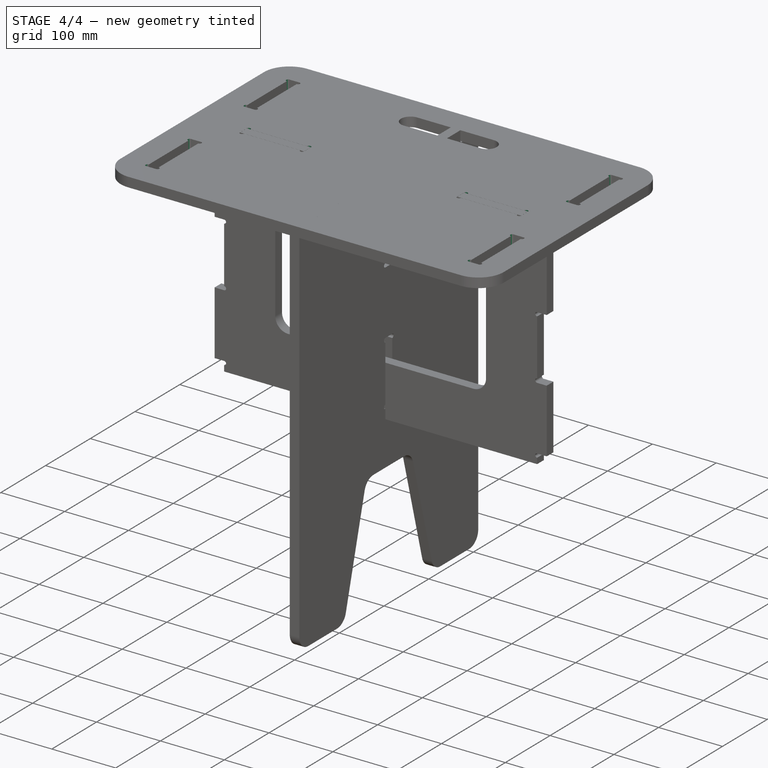
[diagram: stage 4 of 4 — iso view after this stage's code; geometry added in this stage tinted green]
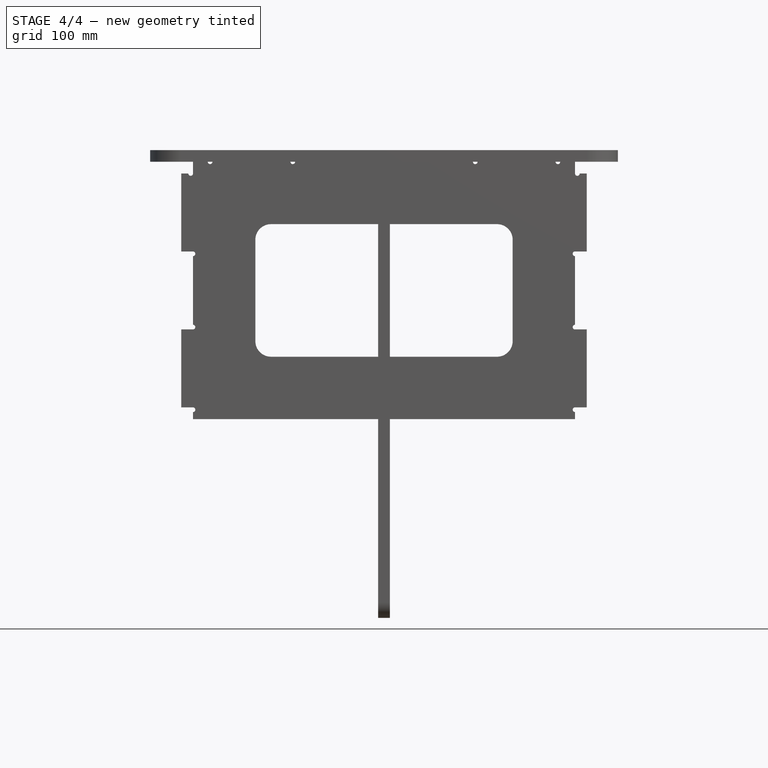
[diagram: stage 4 of 4 — front view after this stage's code; geometry added in this stage tinted green]
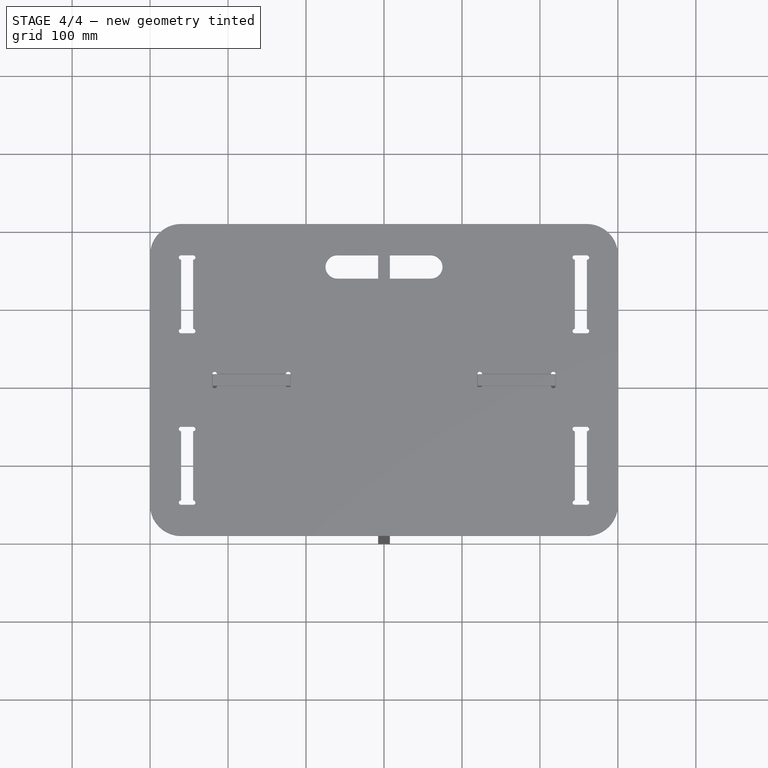
[diagram: stage 4 of 4 — top view after this stage's code; geometry added in this stage tinted green]
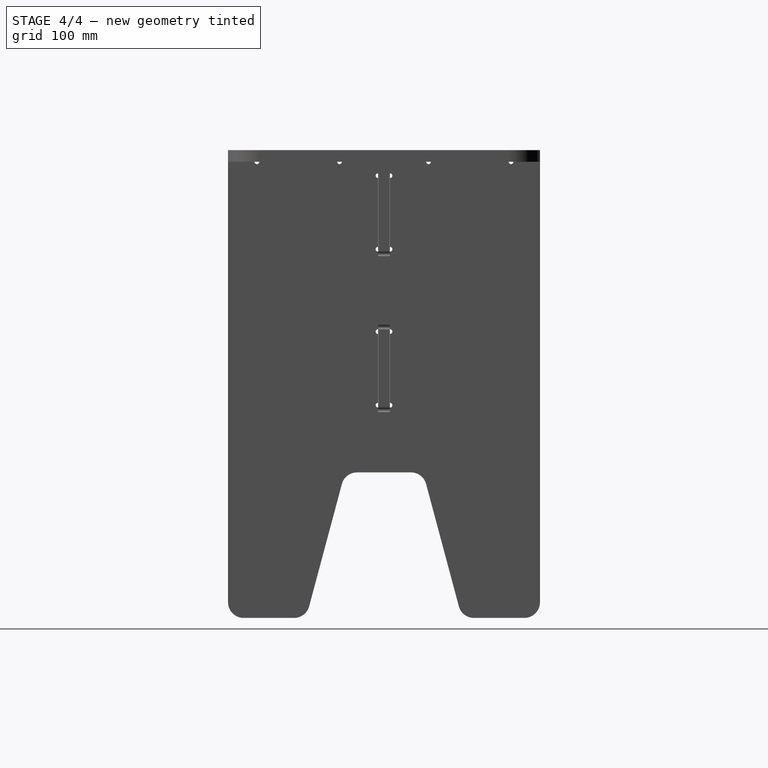
[diagram: stage 4 of 4 — right view after this stage's code; geometry added in this stage tinted green]
FEATURE [Sketcher::SketchObject] Sketch003
  ExternalGeometry = -> [Pad]
  MapMode = 5
  Support = -> [XY_Plane]
  expr: Constraints[0] = Spreadsheet.endmill_dia
  sketch-geometry (24):
    g0: Circle CenterX=-260.2 CenterY=157.2 CenterZ=0 NormalX=0 NormalY=0 NormalZ=1 AngleXU=0 Radius=3
    g1: Circle CenterX=-244.8 CenterY=157.2 CenterZ=0 NormalX=0 NormalY=0 NormalZ=1 AngleXU=0 Radius=3
    g2: Circle CenterX=-260.2 CenterY=62.8 CenterZ=0 NormalX=0 NormalY=0 NormalZ=1 AngleXU=0 Radius=3
    g3: Circle CenterX=-244.8 CenterY=62.8 CenterZ=0 NormalX=0 NormalY=0 NormalZ=1 AngleXU=0 Radius=3
    g4: Circle CenterX=-217.2 CenterY=7.7 CenterZ=0 NormalX=0 NormalY=0 NormalZ=1 AngleXU=0 Radius=3
    g5: Circle CenterX=-122.8 CenterY=7.7 CenterZ=0 NormalX=0 NormalY=0 NormalZ=1 AngleXU=0 Radius=3
    g6: Circle CenterX=-260.2 CenterY=-157.2 CenterZ=0 NormalX=0 NormalY=0 NormalZ=1 AngleXU=0 Radius=3
    g7: Circle CenterX=-244.8 CenterY=-157.2 CenterZ=0 NormalX=0 NormalY=0 NormalZ=1 AngleXU=0 Radius=3
    g8: Circle CenterX=-260.2 CenterY=-62.8 CenterZ=0 NormalX=0 NormalY=0 NormalZ=1 AngleXU=0 Radius=3
    g9: Circle CenterX=-244.8 CenterY=-62.8 CenterZ=0 NormalX=0 NormalY=0 NormalZ=1 AngleXU=0 Radius=3
    g10: Circle CenterX=-217.2 CenterY=-7.7 CenterZ=0 NormalX=0 NormalY=0 NormalZ=1 AngleXU=0 Radius=3
    g11: Circle CenterX=-122.8 CenterY=-7.7 CenterZ=0 NormalX=0 NormalY=0 NormalZ=1 AngleXU=0 Radius=3
    g12: Circle CenterX=260.2 CenterY=157.2 CenterZ=0 NormalX=0 NormalY=0 NormalZ=1 AngleXU=0 Radius=3
    g13: Circle CenterX=244.8 CenterY=157.2 CenterZ=0 NormalX=0 NormalY=0 NormalZ=1 AngleXU=0 Radius=3
    g14: Circle CenterX=260.2 CenterY=62.8 CenterZ=0 NormalX=0 NormalY=0 NormalZ=1 AngleXU=0 Radius=3
    g15: Circle CenterX=244.8 CenterY=62.8 CenterZ=0 NormalX=0 NormalY=0 NormalZ=1 AngleXU=0 Radius=3
    g16: Circle CenterX=217.2 CenterY=7.7 CenterZ=0 NormalX=0 NormalY=0 NormalZ=1 AngleXU=0 Radius=3
    g17: Circle CenterX=122.8 CenterY=7.7 CenterZ=0 NormalX=0 NormalY=0 NormalZ=1 AngleXU=0 Radius=3
    g18: Circle CenterX=260.2 CenterY=-157.2 CenterZ=0 NormalX=0 NormalY=0 NormalZ=1 AngleXU=0 Radius=3
    g19: Circle CenterX=244.8 CenterY=-157.2 CenterZ=0 NormalX=0 NormalY=0 NormalZ=1 AngleXU=0 Radius=3
    g20: Circle CenterX=260.2 CenterY=-62.8 CenterZ=0 NormalX=0 NormalY=0 NormalZ=1 AngleXU=0 Radius=3
    g21: Circle CenterX=244.8 CenterY=-62.8 CenterZ=0 NormalX=0 NormalY=0 NormalZ=1 AngleXU=0 Radius=3
    g22: Circle CenterX=217.2 CenterY=-7.7 CenterZ=0 NormalX=0 NormalY=0 NormalZ=1 AngleXU=0 Radius=3
    g23: Circle CenterX=122.8 CenterY=-7.7 CenterZ=0 NormalX=0 NormalY=0 NormalZ=1 AngleXU=0 Radius=3
  constraints (36):
    c: Diameter(g0) = 6
    c: Equal(g0,g1)
    c: Equal(g1,g2)
    c: Equal(g2,g3)
    c: Equal(g4,g5)
    c: Equal(g5,g0)
    c: PointOnObject(g0,g-3)
    c: PointOnObject(g-4,g0)
    c: PointOnObject(g1,g-5)
    c: PointOnObject(g-5,g1)
    c: PointOnObject(g2,g-3)
    c: PointOnObject(g-3,g2)
    c: PointOnObject(g3,g-5)
    c: PointOnObject(g-5,g3)
    c: PointOnObject(g5,g-7)
    c: PointOnObject(g-8,g5)
    c: PointOnObject(g4,g-7)
    c: PointOnObject(g-7,g4)
    c: Diameter(g6) = 6
    c: Equal(g6,g7)
    c: Equal(g7,g8)
    c: Equal(g8,g9)
    c: Equal(g10,g11)
    c: Equal(g11,g6)
    c: Diameter(g12) = 6
    c: Equal(g12,g13)
    c: Equal(g13,g14)
    c: Equal(g14,g15)
    c: Equal(g16,g17)
    c: Equal(g17,g12)
    c: Diameter(g18) = 6
    c: Equal(g18,g19)
    c: Equal(g19,g20)
    c: Equal(g20,g21)
    c: Equal(g22,g23)
    c: Equal(g23,g18)
FEATURE [PartDesign::Pocket] Pocket  label="dogbones"
  BaseFeature = -> Pad
  Length = 5
  Length2 = 100
  Profile = -> Sketch003
  Type = 1
FEATURE [PartDesign::Body] Body001  label="foot_01"
  Group = -> [Sketch001,Pad001,Fillet,Sketch004,Pocket001]
  Origin = -> Origin001
  Placement = pos=(-252.5,0,0) rot=(0,0,1;0rad)
  Tip = -> Pocket001
  expr: .Placement.Base.x = -Spreadsheet.seat_x / 2 + Spreadsheet.seat_margin + Spreadsheet.material_thickness / 2
FEATURE [PartDesign::FeatureBase] Clone
  BaseFeature = -> Body001
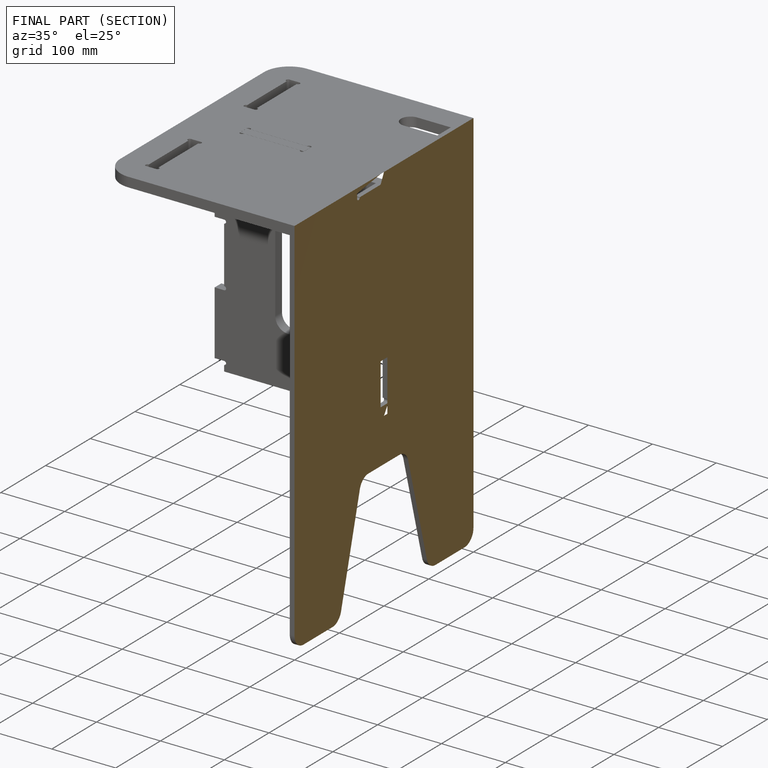
[diagram: finished part — half-section view (interior)]
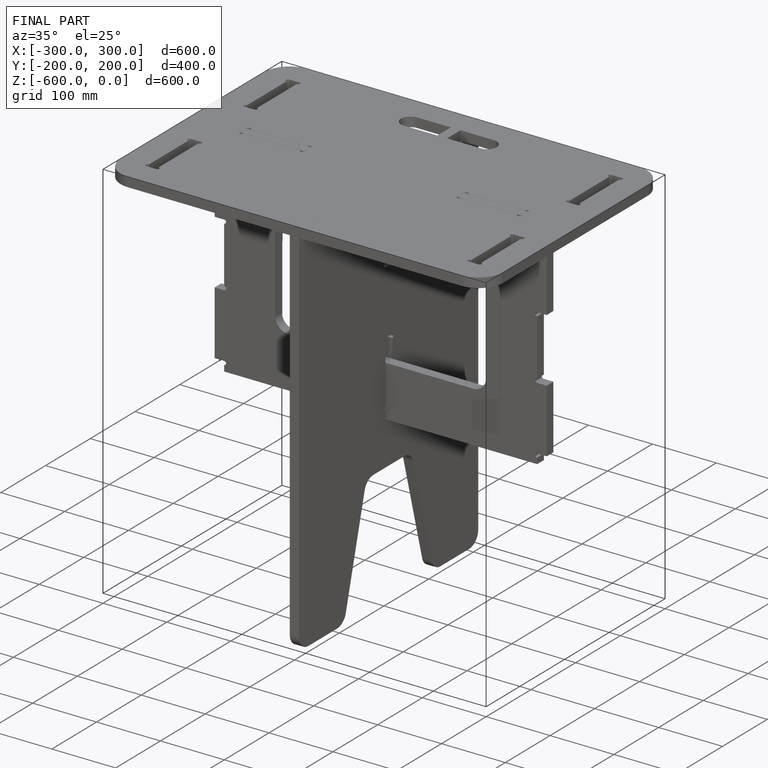
[diagram: finished part — iso view with bounding-box wireframe]
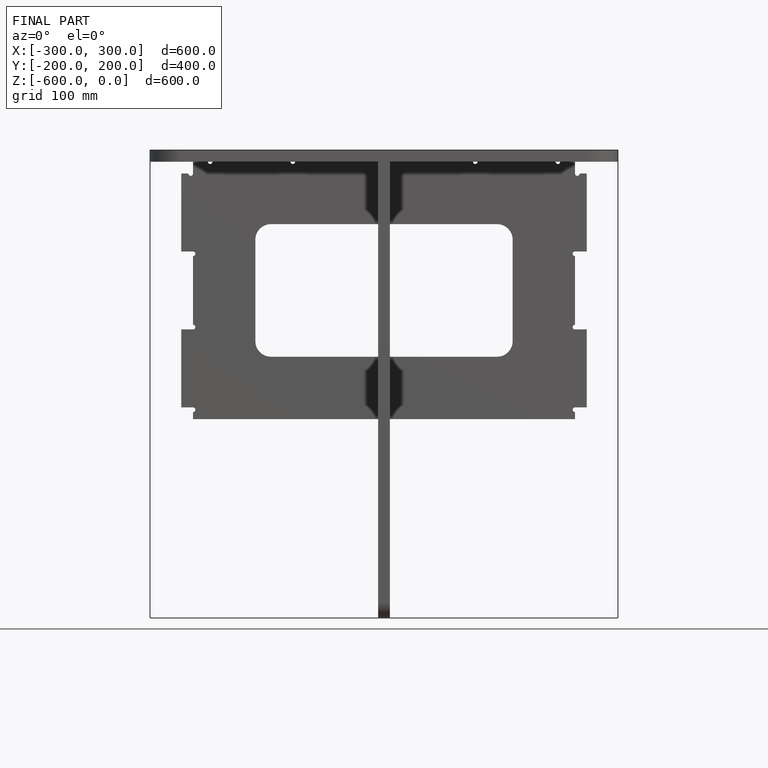
[diagram: finished part — front view with bounding-box wireframe]
